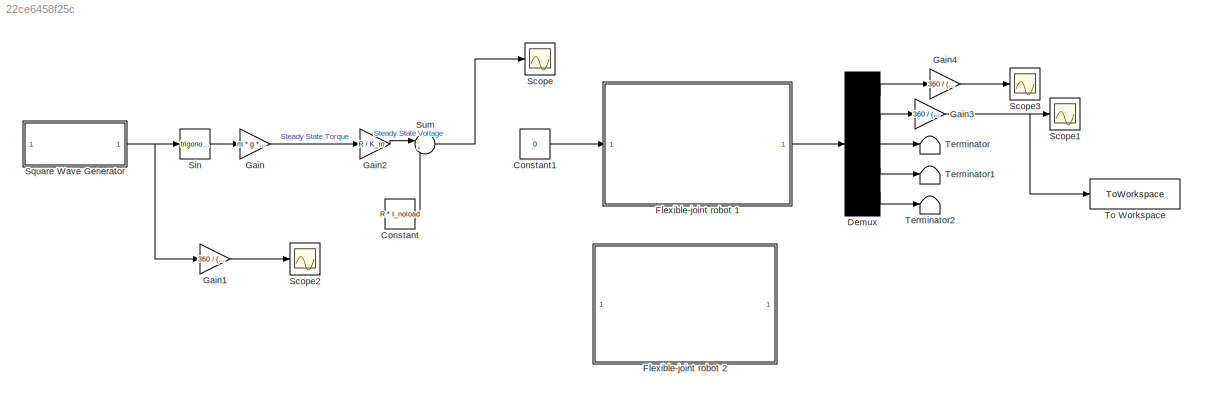
MODEL slx_22ce6458f25c
KIND model
CONFIG AbsTol = auto
CONFIG EnableMultiTasking = off
CONFIG FixedStep = auto
CONFIG MaxStep = auto
CONFIG MinStep = auto
CONFIG RelTol = 1e-3
CONFIG SampleTimeConstraint = Unconstrained
CONFIG SolverName = VariableStepAuto
CONFIG StartTime = 0.0
CONFIG StopTime = 21
BLOCK [Constant] Constant
  Value = R * I_noload
BLOCK [Constant] Constant1
  Value = 0
BLOCK [Demux] Demux
  Outputs = 5
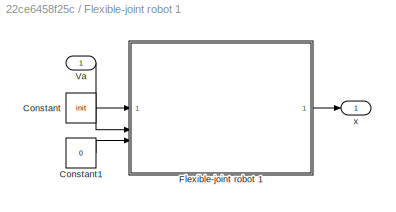
BLOCK [SubSystem] Flexible-joint robot 1
BLOCK [Constant] Flexible-joint robot 1/Constant
  Value = init
BLOCK [Constant] Flexible-joint robot 1/Constant1
  Value = 0
BLOCK [ModelReference] Flexible-joint robot 1/Flexible-joint robot 1
  CopyOfModelProtected = on
  ModelNameDialog = Flexible_joint_robot_1
  ModelReferenceVersion = 1.65
BLOCK [Inport] Flexible-joint robot 1/Va
BLOCK [Outport] Flexible-joint robot 1/x
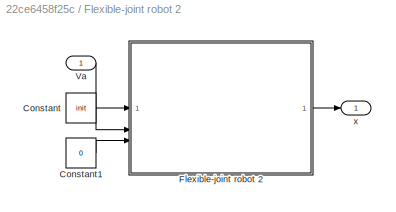
BLOCK [SubSystem] Flexible-joint robot 2
BLOCK [Constant] Flexible-joint robot 2/Constant
  Value = init
BLOCK [Constant] Flexible-joint robot 2/Constant1
  Value = 0
BLOCK [ModelReference] Flexible-joint robot 2/Flexible-joint robot 2
  CopyOfModelProtected = on
  ModelNameDialog = Flexible_joint_robot_2
  ModelReferenceVersion = 1.65
BLOCK [Inport] Flexible-joint robot 2/Va
BLOCK [Outport] Flexible-joint robot 2/x
BLOCK [Gain] Gain
  Gain = m * g * l
BLOCK [Gain] Gain1
  Gain = 360 / (2 * pi)
BLOCK [Gain] Gain2
  Gain = R / K_m
BLOCK [Gain] Gain3
  Gain = 360 / (2 * pi)
BLOCK [Gain] Gain4
  Gain = 360 / (2 * pi)
BLOCK [Scope] Scope
  Floating = off
  NumInputPorts = 1
  ScopeSpecificationString = Simulink.scopes.TimeScopeBlockCfg('CurrentConfiguration', extmgr.ConfigurationSet(extmgr.Configuration('Core','General UI',true),extmgr.Configuration('Core','Source UI',true),extmgr.Configuration('Sources','WiredSimulink',true),extmgr.Configuration('Visuals','Time Domain',true,'SerializedDisplays',{struct('MinYLimReal','0.35633','MaxYLimReal','0.62254','YLabelReal','','MinYLimMag','0.35633','MaxYL...<+1350ch>
BLOCK [Scope] Scope1
  Floating = off
  NumInputPorts = 1
  ScopeSpecificationString = Simulink.scopes.TimeScopeBlockCfg('CurrentConfiguration', extmgr.ConfigurationSet(extmgr.Configuration('Core','General UI',true),extmgr.Configuration('Core','Source UI',true),extmgr.Configuration('Sources','WiredSimulink',true,'DataLoggingVariableName','ScopeData1'),extmgr.Configuration('Visuals','Time Domain',true,'SerializedDisplays',{struct('MinYLimReal','-7.7033','MaxYLimReal','34.18926','YLab...<+1720ch>
BLOCK [Scope] Scope2
  Floating = off
  NumInputPorts = 1
  ScopeSpecificationString = Simulink.scopes.TimeScopeBlockCfg('CurrentConfiguration', extmgr.ConfigurationSet(extmgr.Configuration('Core','General UI',true),extmgr.Configuration('Core','Source UI',true),extmgr.Configuration('Sources','WiredSimulink',true,'DataLoggingVariableName','ScopeData2'),extmgr.Configuration('Visuals','Time Domain',true,'SerializedDisplays',{struct('MinYLimReal','11.25','MaxYLimReal','48.75','YLabelRea...<+1346ch>
BLOCK [Scope] Scope3
  Floating = off
  NumInputPorts = 1
  ScopeSpecificationString = Simulink.scopes.TimeScopeBlockCfg('CurrentConfiguration', extmgr.ConfigurationSet(extmgr.Configuration('Core','General UI',true),extmgr.Configuration('Core','Source UI',true),extmgr.Configuration('Sources','WiredSimulink',true,'DataLoggingVariableName','ScopeData3'),extmgr.Configuration('Visuals','Time Domain',true,'SerializedDisplays',{struct('MinYLimReal','-7.86174','MaxYLimReal','34.20686','YLa...<+1697ch>
BLOCK [Trigonometry] Sin
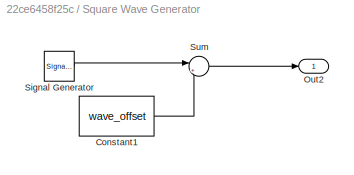
BLOCK [SubSystem] Square Wave Generator
BLOCK [Constant] Square Wave Generator/Constant1
  Value = wave_offset
BLOCK [Outport] Square Wave Generator/Out2
BLOCK [SignalGenerator] Square Wave Generator/Signal Generator
  Amplitude = wave_amplitude
  Frequency = 1 / wave_period
  WaveForm = square
BLOCK [Sum] Square Wave Generator/Sum
  Inputs = |++
BLOCK [Sum] Sum
  Inputs = |++
BLOCK [Terminator] Terminator
BLOCK [Terminator] Terminator1
BLOCK [Terminator] Terminator2
BLOCK [ToWorkspace] To Workspace
  FixptAsFi = on
  MaxDataPoints = inf
  SampleTime = -1
  SaveFormat = Timeseries
  VariableName = simout
LINE Constant1:1 -> Flexible-joint robot 1:1
LINE Constant:1 -> Sum:2
LINE Demux:1 -> Gain4:1
LINE Demux:2 -> Gain3:1
LINE Demux:3 -> Terminator:1
LINE Demux:4 -> Terminator1:1
LINE Demux:5 -> Terminator2:1
LINE Flexible-joint robot 1/Constant1:1 -> Flexible-joint robot 1/Flexible-joint robot 1:3
LINE Flexible-joint robot 1/Constant:1 -> Flexible-joint robot 1/Flexible-joint robot 1:2
LINE Flexible-joint robot 1/Flexible-joint robot 1:1 -> Flexible-joint robot 1/x:1
LINE Flexible-joint robot 1/Va:1 -> Flexible-joint robot 1/Flexible-joint robot 1:1
LINE Flexible-joint robot 1:1 -> Demux:1
LINE Flexible-joint robot 2/Constant1:1 -> Flexible-joint robot 2/Flexible-joint robot 2:3
LINE Flexible-joint robot 2/Constant:1 -> Flexible-joint robot 2/Flexible-joint robot 2:2
LINE Flexible-joint robot 2/Flexible-joint robot 2:1 -> Flexible-joint robot 2/x:1
LINE Flexible-joint robot 2/Va:1 -> Flexible-joint robot 2/Flexible-joint robot 2:1
LINE Gain1:1 -> Scope2:1
LINE Gain2:1 -> Sum:1
NET Gain3:1 -> Scope1:1, To Workspace:1
LINE Gain4:1 -> Scope3:1
LINE Gain:1 -> Gain2:1
LINE Sin:1 -> Gain:1
LINE Square Wave Generator/Constant1:1 -> Square Wave Generator/Sum:2
LINE Square Wave Generator/Signal Generator:1 -> Square Wave Generator/Sum:1
LINE Square Wave Generator/Sum:1 -> Square Wave Generator/Out2:1
NET Square Wave Generator:1 -> Gain1:1, Sin:1
LINE Sum:1 -> Scope:1
note: NET lines group one-source signal fan-out (src -> all destinations, sorted); 1:1 wires keep LINE
